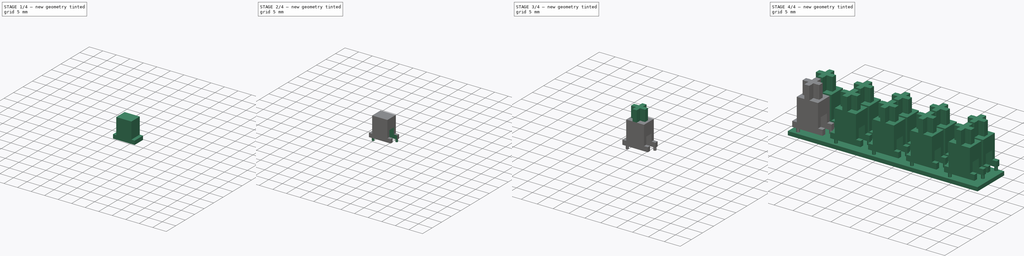
[diagram: build sequence overview — one tinted view per stage of 4, left to right]
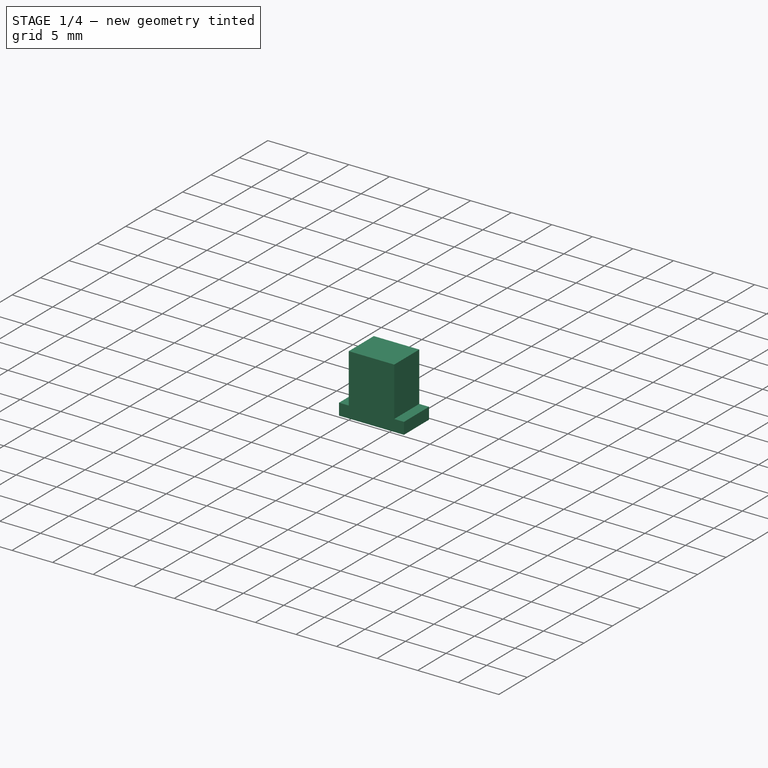
[diagram: stage 1 of 4 — iso view after this stage's code; geometry added in this stage tinted green]
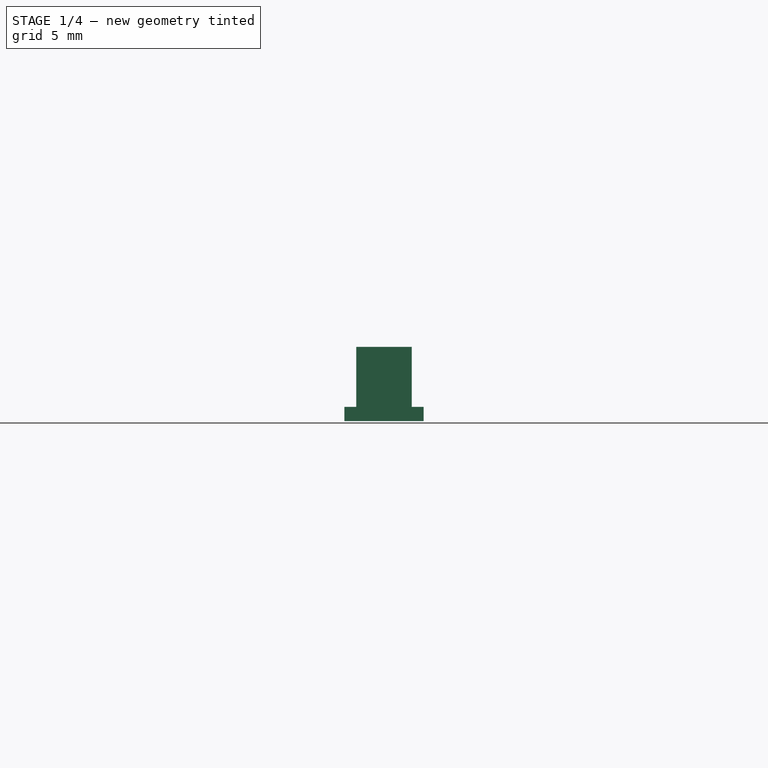
[diagram: stage 1 of 4 — front view after this stage's code; geometry added in this stage tinted green]
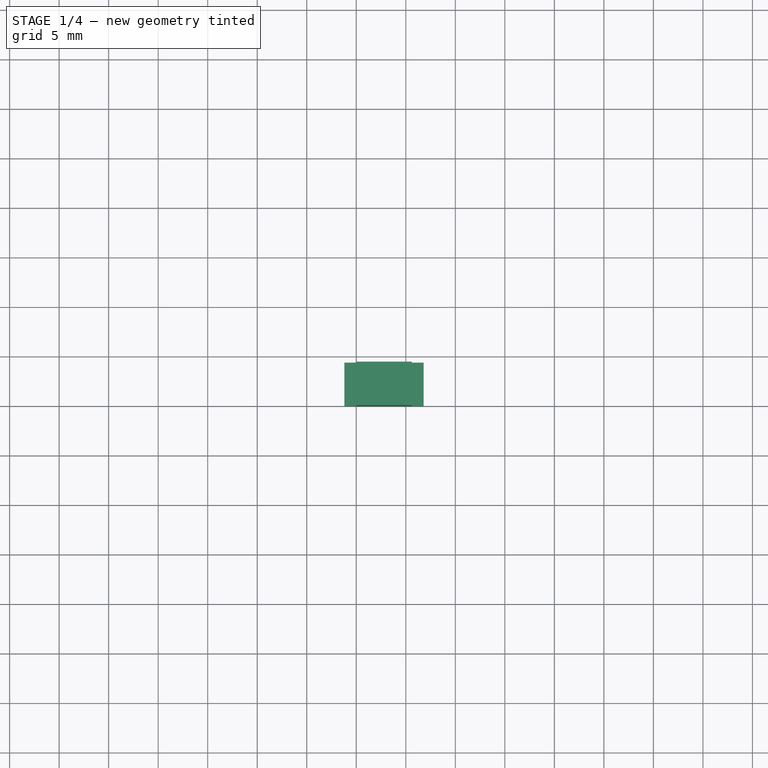
[diagram: stage 1 of 4 — top view after this stage's code; geometry added in this stage tinted green]
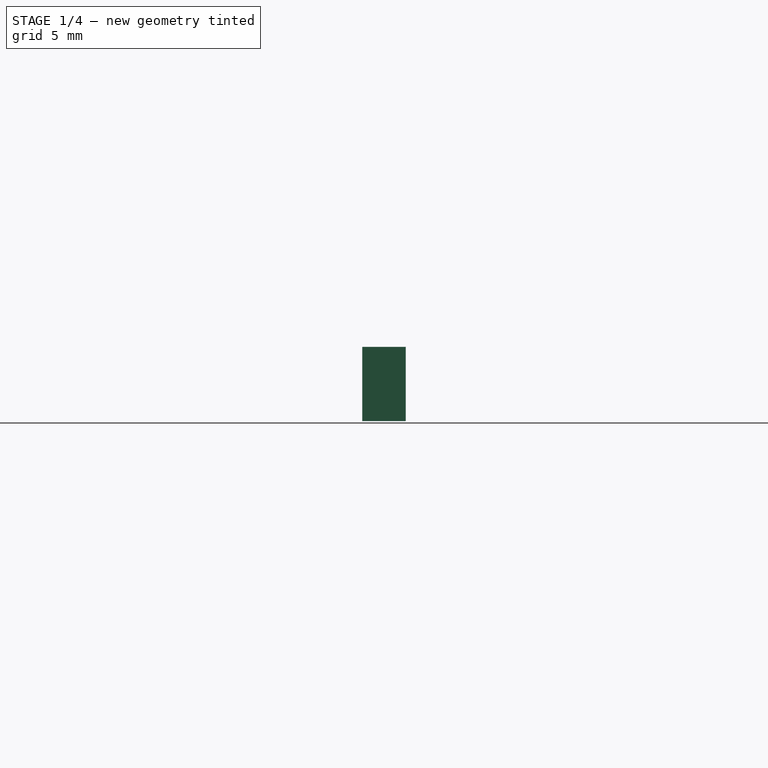
[diagram: stage 1 of 4 — right view after this stage's code; geometry added in this stage tinted green]
FCSTD DOCUMENT  (FreeCAD 0.21R33668 +7 (Git))
Label: DurockInsert
License: All rights reserved
LicenseURL: http://en.wikipedia.org/wiki/All_rights_reserved
objects: PartDesign::Body×5, Sketcher::SketchObject×4, PartDesign::AdditiveBox×3, PartDesign::Plane×2, PartDesign::Pocket×2, PartDesign::Pad×2, Part::FeaturePython×2, PartDesign::FeatureBase×2, PartDesign::Boolean×1, Spreadsheet::Sheet×1, App::Part×1
note: 29 computed .brp shape members not serialized (recipe doc carries the construction recipe); baked Part::Feature solids carry a one-line shape summary decoded from their .brp

FEATURE [PartDesign::AdditiveBox] Box
  AttacherType = Attacher::AttachEngine3D
  Height = 7.5
  Length = 5.6
  Width = 4.4
FEATURE [PartDesign::AdditiveBox] Box001
  AttacherType = Attacher::AttachEngine3D
  AttachmentOffset = pos=(-1.2,0,0) rot=(0,0,1;0rad)
  Height = 1.44
  Length = 8
  MapMode = 5
  Placement = pos=(-1.2,0,0) rot=(0,0,1;0rad)
  Width = 4.4
  expr: .AttachmentOffset.Base.x = -(8 - 5.6) / 2
FEATURE [PartDesign::Boolean] Boolean
  Group = -> [Box,Box001]
  Type = 0
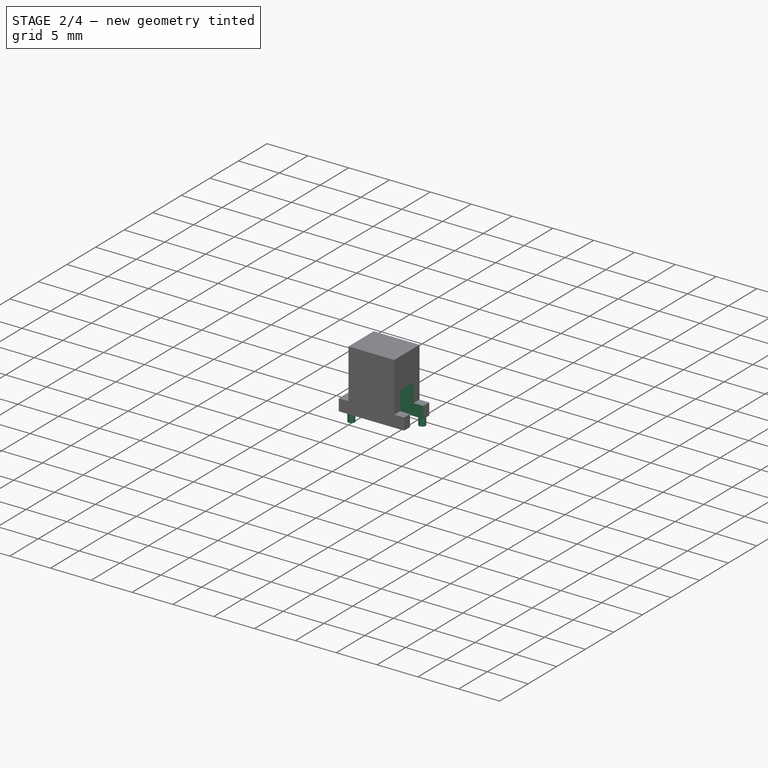
[diagram: stage 2 of 4 — iso view after this stage's code; geometry added in this stage tinted green]
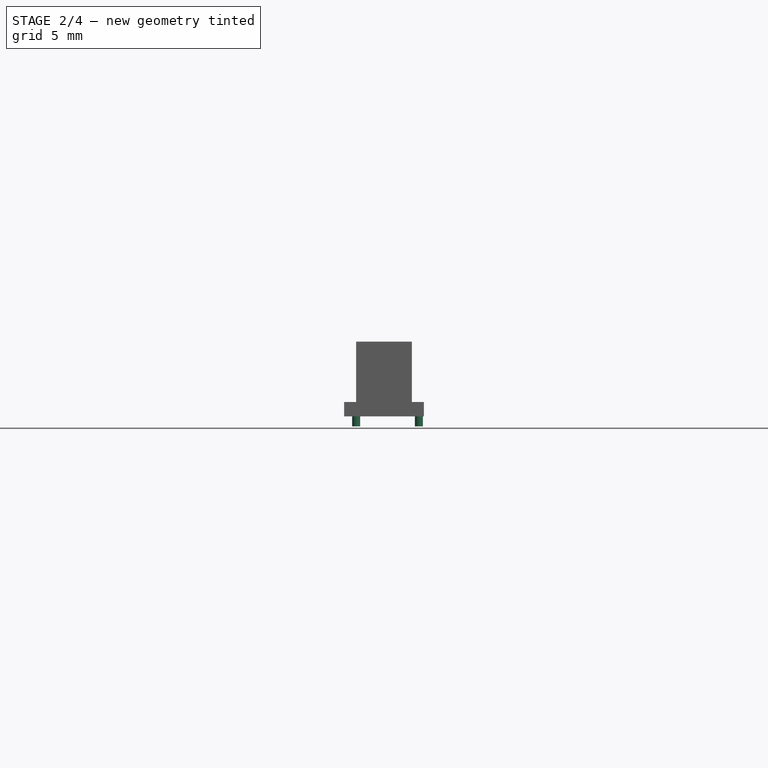
[diagram: stage 2 of 4 — front view after this stage's code; geometry added in this stage tinted green]
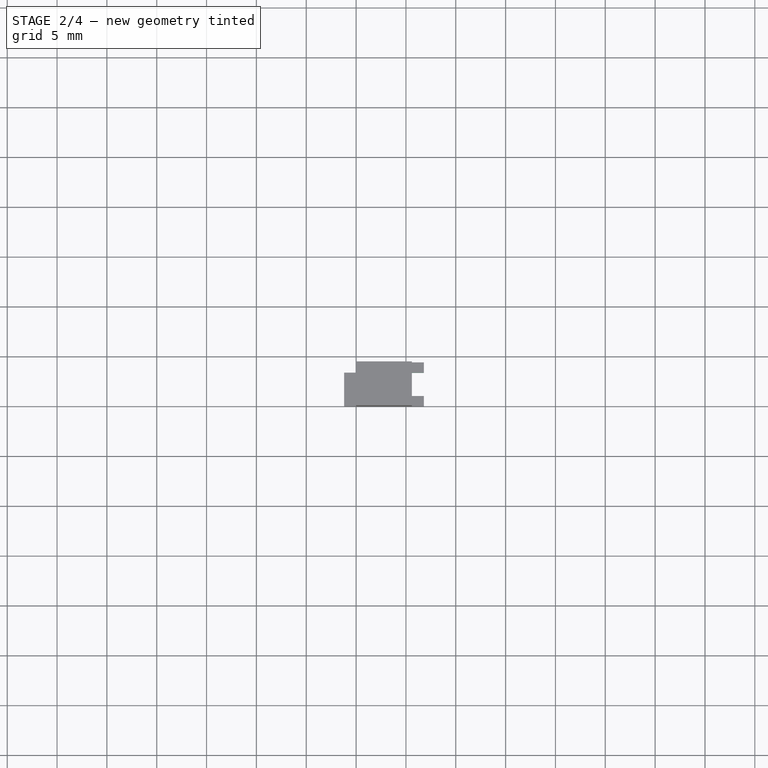
[diagram: stage 2 of 4 — top view after this stage's code; geometry added in this stage tinted green]
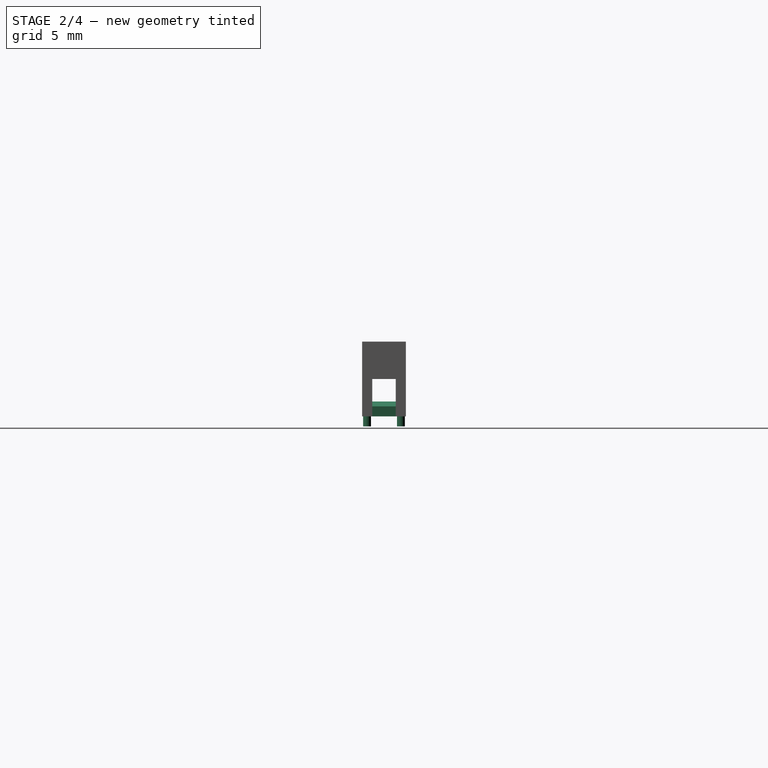
[diagram: stage 2 of 4 — right view after this stage's code; geometry added in this stage tinted green]
FEATURE [PartDesign::Plane] DatumPlane
  AttachmentOffset = pos=(0,0,-1.025) rot=(0,0,1;0rad)
  Length = 60
  MapMode = 5
  Placement = pos=(0,1.025,-2e-16) rot=(1,0,0;1.5708rad)
  ResizeMode = 0
  Support = -> [Boolean]
  Width = 60
  expr: .AttachmentOffset.Base.z = (2.35 - 4.4) / 2
FEATURE [Sketcher::SketchObject] Sketch  label="HoleSketch"
  FullyConstrained = true
  MapMode = 5
  Placement = pos=(0,1.025,-2e-16) rot=(1,0,0;1.5708rad)
  Support = -> [DatumPlane]
  sketch-geometry (8):
    g0: LineSegment StartX=0 StartY=5.5 StartZ=0 EndX=2.85 EndY=3.75 EndZ=0
    g1: LineSegment StartX=2.85 StartY=3.75 StartZ=0 EndX=6.8 EndY=3.75 EndZ=0
    g2: LineSegment StartX=6.8 StartY=3.75 StartZ=0 EndX=6.8 EndY=0 EndZ=0
    g3: LineSegment StartX=6.8 StartY=0 StartZ=0 EndX=3 EndY=0 EndZ=0
    g4: LineSegment StartX=3 StartY=0 StartZ=0 EndX=3 EndY=1 EndZ=0
    g5: LineSegment StartX=3 StartY=1 StartZ=0 EndX=2 EndY=1.5 EndZ=0
    g6: LineSegment StartX=2 StartY=1.5 StartZ=0 EndX=0 EndY=1.5 EndZ=0
    g7: LineSegment StartX=0 StartY=1.5 StartZ=0 EndX=0 EndY=5.5 EndZ=0
  constraints (24):
    c: PointOnObject(g0,g-2)
    c: Coincident(g0,g1)
    c: Horizontal(g1)
    c: Coincident(g1,g2)
    c: PointOnObject(g2,g-1)
    c: Vertical(g2)
    c: Coincident(g2,g3)
    c: PointOnObject(g3,g-1)
    c: Coincident(g3,g4)
    c: Vertical(g4)
    c: Coincident(g4,g5)
    c: Coincident(g5,g6)
    c: PointOnObject(g6,g-2)
    c: Horizontal(g6)
    c: Coincident(g6,g7)
    c: Coincident(g7,g0)
    c: DistanceY(g-1,g0) = 5.5
    c: DistanceY(g-1,g6) = 1.5
    c: DistanceY(g2,g2) = 3.75
    c: DistanceX(g1,g1) = 3.95
    c: DistanceX(g-1,g2) = 6.8
    c: DistanceX(g-1,g3) = 3
    c: DistanceX(g6,g6) = 2
    c: DistanceY(g4,g4) = 1
FEATURE [PartDesign::Pocket] Pocket  label="Hole"
  BaseFeature = -> Boolean
  Direction = (0,1,-2e-16)
  Length = 2.35
  Length2 = 5
  Profile = -> Sketch
  ReferenceAxis = -> Sketch [N_Axis]
  Type = 0
FEATURE [Sketcher::SketchObject] Sketch001  label="NotchSketch"
  ExternalGeometry = -> [Pocket]
  FullyConstrained = true
  MapMode = 5
  Placement = pos=(0,0,0) rot=(1,0,0;3.14159rad)
  Support = -> [Pocket]
  expr: Constraints[10] = (4.4 - 2.35) / 2
  sketch-geometry (4):
    g0: LineSegment StartX=-1.2 StartY=-4.4 StartZ=0 EndX=-2e-16 EndY=-4.4 EndZ=0
    g1: LineSegment StartX=-2e-16 StartY=-4.4 StartZ=0 EndX=-2e-16 EndY=-3.375 EndZ=0
    g2: LineSegment StartX=-2e-16 StartY=-3.375 StartZ=0 EndX=-1.2 EndY=-3.375 EndZ=0
    g3: LineSegment StartX=-1.2 StartY=-3.375 StartZ=0 EndX=-1.2 EndY=-4.4 EndZ=0
  constraints (11):
    c: Coincident(g0,g1)
    c: Coincident(g1,g2)
    c: Coincident(g2,g3)
    c: Coincident(g3,g0)
    c: Horizontal(g0)
    c: Horizontal(g2)
    c: Vertical(g1)
    c: Vertical(g3)
    c: Coincident(g0,g-3)
    c: DistanceX(g2,g2) = 1.2
    c: DistanceY(g1,g1) = 1.025
FEATURE [PartDesign::Pocket] Pocket001  label="Notch"
  BaseFeature = -> Pocket
  Direction = (0,0,1)
  Length = 5
  Length2 = 5
  Profile = -> Sketch001
  ReferenceAxis = -> Sketch001 [N_Axis]
  Refine = true
  Type = 1
FEATURE [PartDesign::Body] Body001  label="StemBody"
  Group = -> [DatumPlane001,Sketch002,Pad]
  Origin = -> Origin002
  Tip = -> Pad
FEATURE [Sketcher::SketchObject] Sketch003  label="SupportSketch"
  ExternalGeometry = -> [Pocket001]
  FullyConstrained = true
  MapMode = 5
  Placement = pos=(0,0,0) rot=(1,0,0;3.14159rad)
  Support = -> [Pocket001]
  sketch-geometry (2):
    g0: Circle CenterX=0 CenterY=-0.5 CenterZ=0 NormalX=0 NormalY=0 NormalZ=1 AngleXU=0 Radius=0.4
    g1: Circle CenterX=6.3 CenterY=-3.9 CenterZ=0 NormalX=0 NormalY=0 NormalZ=1 AngleXU=0 Radius=0.4
  constraints (6):
    c: Diameter(g0) = 0.8
    c: PointOnObject(g0,g-2)
    c: DistanceY(g0,g-1) = 0.5
    c: Diameter(g1) = 0.8
    c: DistanceY(g-3,g1) = 0.5
    c: DistanceX(g1,g-3) = 0.5
FEATURE [PartDesign::Pad] Pad001  label="Support"
  BaseFeature = -> Pocket001
  Direction = (0,0,-1)
  Length = 1
  Length2 = 10
  Profile = -> Sketch003
  ReferenceAxis = -> Sketch003 [N_Axis]
  Type = 0
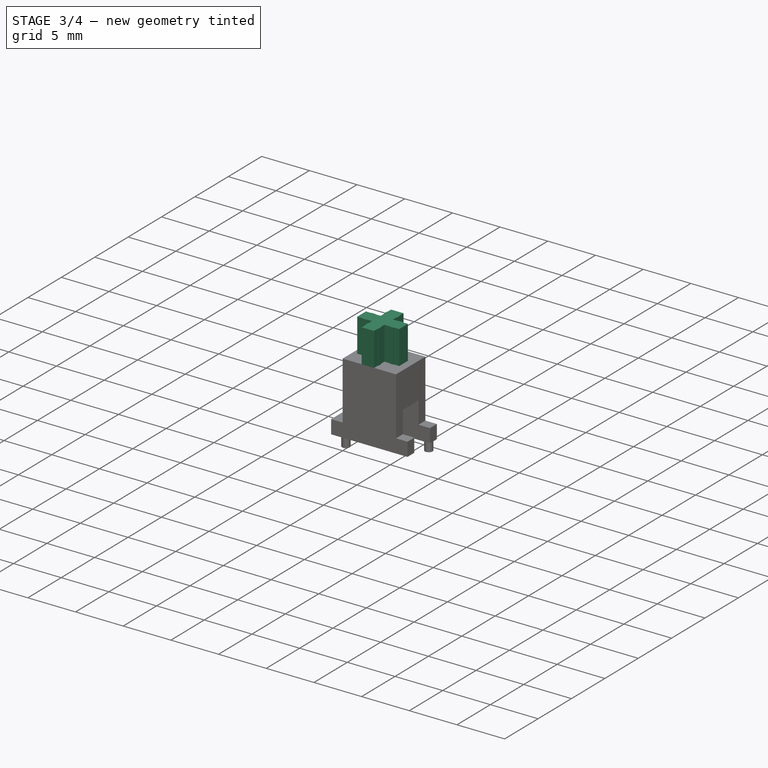
[diagram: stage 3 of 4 — iso view after this stage's code; geometry added in this stage tinted green]
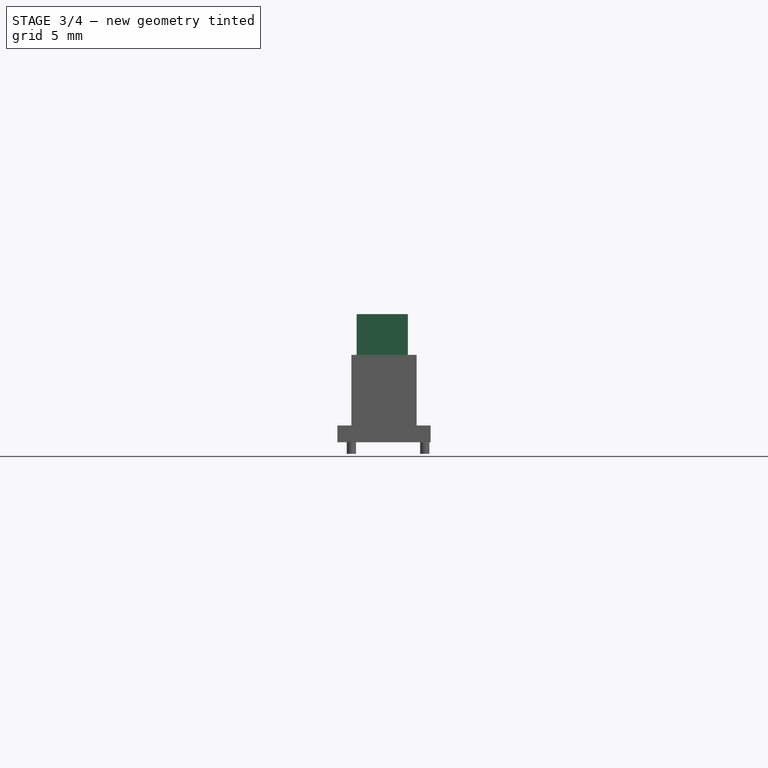
[diagram: stage 3 of 4 — front view after this stage's code; geometry added in this stage tinted green]
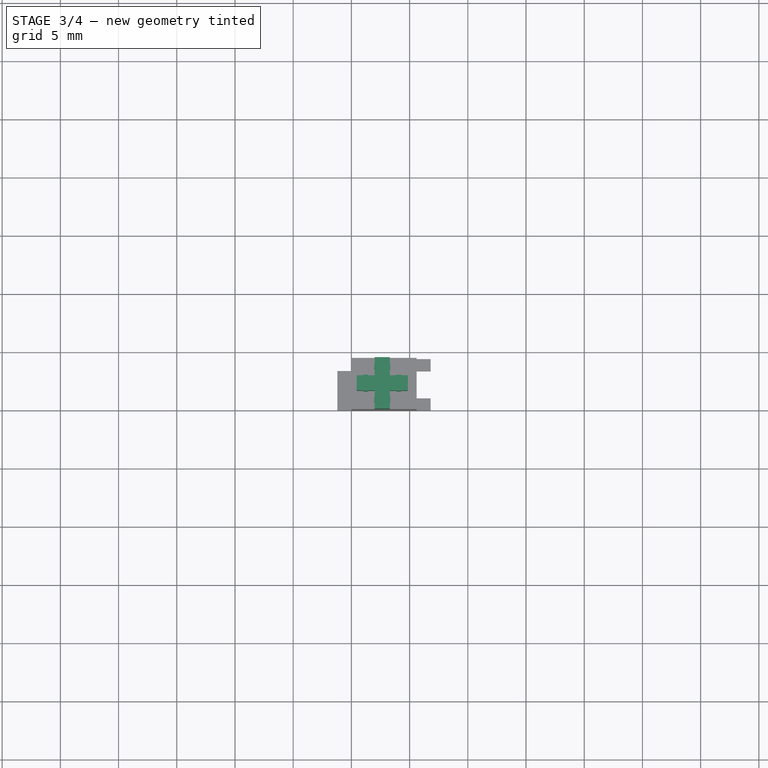
[diagram: stage 3 of 4 — top view after this stage's code; geometry added in this stage tinted green]
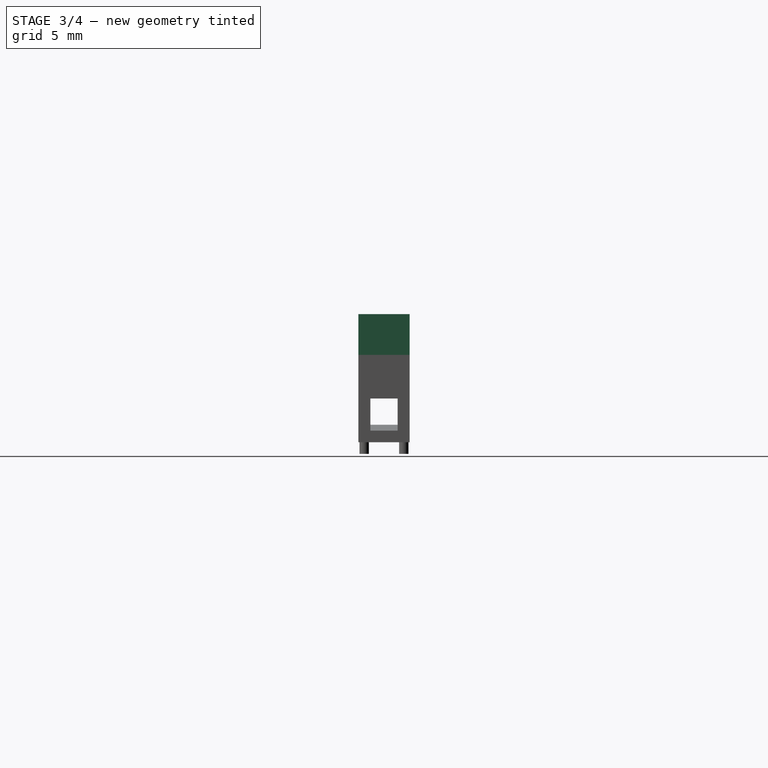
[diagram: stage 3 of 4 — right view after this stage's code; geometry added in this stage tinted green]
FEATURE [PartDesign::Plane] DatumPlane001
  AttachmentOffset = pos=(0,0,7.5) rot=(0,0,1;0rad)
  Length = 60
  MapMode = 2
  Placement = pos=(0,0,7.5) rot=(0,0,1;0rad)
  ResizeMode = 0
  Support = -> [XY_Plane002]
  Width = 60
FEATURE [Sketcher::SketchObject] Sketch002  label="CrossSketch"
  FullyConstrained = true
  MapMode = 5
  Placement = pos=(0,0,7.5) rot=(0,0,1;0rad)
  Support = -> [DatumPlane001]
  expr: Constraints[11] = (5.6 - 1.6) / 2
  sketch-geometry (44):
    g0: LineSegment StartX=2 StartY=4.4 StartZ=0 EndX=3.3 EndY=4.4 EndZ=0
    g1: LineSegment StartX=4.85 StartY=2.85 StartZ=0 EndX=4.85 EndY=1.55 EndZ=0
    g2: LineSegment StartX=3.3 StartY=0 StartZ=0 EndX=2 EndY=0 EndZ=0
    g3: LineSegment StartX=0.45 StartY=1.55 StartZ=0 EndX=0.45 EndY=2.85 EndZ=0
    g4: LineSegment StartX=0.45 StartY=2.85 StartZ=0 EndX=1.025 EndY=2.85 EndZ=0
    g5: LineSegment StartX=2 StartY=3.825 StartZ=0 EndX=2 EndY=4.4 EndZ=0
    g6: LineSegment StartX=3.3 StartY=4.4 StartZ=0 EndX=3.3 EndY=3.825 EndZ=0
    g7: LineSegment StartX=4.275 StartY=2.85 StartZ=0 EndX=4.85 EndY=2.85 EndZ=0
    g8: LineSegment StartX=4.85 StartY=1.55 StartZ=0 EndX=4.275 EndY=1.55 EndZ=0
    g9: LineSegment StartX=0.45 StartY=1.55 StartZ=0 EndX=1.025 EndY=1.55 EndZ=0
    g10: LineSegment StartX=2 StartY=0.575 StartZ=0 EndX=2 EndY=0 EndZ=0
    g11: LineSegment StartX=3.3 StartY=0.575 StartZ=0 EndX=3.3 EndY=0 EndZ=0
    g12: LineSegment StartX=1.025 StartY=2.85 StartZ=0 EndX=1.025 EndY=2.9 EndZ=0
    g13: LineSegment StartX=1.025 StartY=2.9 StartZ=0 EndX=1.425 EndY=2.9 EndZ=0
    g14: LineSegment StartX=1.425 StartY=2.9 StartZ=0 EndX=1.425 EndY=2.85 EndZ=0
    g15: LineSegment StartX=1.425 StartY=2.85 StartZ=0 EndX=2 EndY=2.85 EndZ=0
    g16: LineSegment StartX=2 StartY=2.85 StartZ=0 EndX=2 EndY=3.425 EndZ=0
    g17: LineSegment StartX=2 StartY=3.425 StartZ=0 EndX=1.95 EndY=3.425 EndZ=0
    g18: LineSegment StartX=1.95 StartY=3.425 StartZ=0 EndX=1.95 EndY=3.825 EndZ=0
    g19: LineSegment StartX=1.95 StartY=3.825 StartZ=0 EndX=2 EndY=3.825 EndZ=0
    g20: LineSegment StartX=1.025 StartY=1.55 StartZ=0 EndX=1.025 EndY=1.5 EndZ=0
    g21: LineSegment StartX=1.025 StartY=1.5 StartZ=0 EndX=1.425 EndY=1.5 EndZ=0
    g22: LineSegment StartX=1.425 StartY=1.5 StartZ=0 EndX=1.425 EndY=1.55 EndZ=0
    g23: LineSegment StartX=1.425 StartY=1.55 StartZ=0 EndX=2 EndY=1.55 EndZ=0
    g24: LineSegment StartX=2 StartY=1.55 StartZ=0 EndX=2 EndY=0.975 EndZ=0
    g25: LineSegment StartX=2 StartY=0.975 StartZ=0 EndX=1.95 EndY=0.975 EndZ=0
    g26: LineSegment StartX=1.95 StartY=0.975 StartZ=0 EndX=1.95 EndY=0.575 EndZ=0
    g27: LineSegment StartX=1.95 StartY=0.575 StartZ=0 EndX=2 EndY=0.575 EndZ=0
    g28: LineSegment StartX=3.3 StartY=0.575 StartZ=0 EndX=3.35 EndY=0.575 EndZ=0
    g29: LineSegment StartX=3.35 StartY=0.575 StartZ=0 EndX=3.35 EndY=0.975 EndZ=0
    g30: LineSegment StartX=3.35 StartY=0.975 StartZ=0 EndX=3.3 EndY=0.975 EndZ=0
    g31: LineSegment StartX=3.3 StartY=0.975 StartZ=0 EndX=3.3 EndY=1.55 EndZ=0
    g32: LineSegment StartX=3.3 StartY=1.55 StartZ=0 EndX=3.875 EndY=1.55 EndZ=0
    g33: LineSegment StartX=3.875 StartY=1.55 StartZ=0 EndX=3.875 EndY=1.5 EndZ=0
    g34: LineSegment StartX=3.875 StartY=1.5 StartZ=0 EndX=4.275 EndY=1.5 EndZ=0
    g35: LineSegment StartX=4.275 StartY=1.5 StartZ=0 EndX=4.275 EndY=1.55 EndZ=0
    g36: LineSegment StartX=3.3 StartY=3.825 StartZ=0 EndX=3.35 EndY=3.825 EndZ=0
    g37: LineSegment StartX=3.35 StartY=3.825 StartZ=0 EndX=3.35 EndY=3.425 EndZ=0
    g38: LineSegment StartX=3.35 StartY=3.425 StartZ=0 EndX=3.3 EndY=3.425 EndZ=0
    g39: LineSegment StartX=3.3 StartY=3.425 StartZ=0 EndX=3.3 EndY=2.85 EndZ=0
    g40: LineSegment StartX=3.3 StartY=2.85 StartZ=0 EndX=3.875 EndY=2.85 EndZ=0
    g41: LineSegment StartX=3.875 StartY=2.85 StartZ=0 EndX=3.875 EndY=2.9 EndZ=0
    g42: LineSegment StartX=3.875 StartY=2.9 StartZ=0 EndX=4.275 EndY=2.9 EndZ=0
    g43: LineSegment StartX=4.275 StartY=2.9 StartZ=0 EndX=4.275 EndY=2.85 EndZ=0
  constraints (132):
    c: Horizontal(g0)
    c: Vertical(g1)
    c: Horizontal(g2)
    c: Vertical(g3)
    c: Coincident(g3,g4)
    c: Equal(g0,g2)
    c: Equal(g3,g1)
    c: Equal(g1,g0)
    c: DistanceY(g1,g1) = 1.3
    c: Horizontal(g-1,g2)
    c: DistanceY(g2,g0) = 4.4
    c: DistanceX(g-1,g2) = 2
    c: Horizontal(g4)
    c: Coincident(g5,g0)
    c: Vertical(g5)
    c: Coincident(g0,g6)
    c: Vertical(g6)
    c: Coincident(g7,g1)
    c: Horizontal(g7)
    c: Coincident(g1,g8)
    c: Horizontal(g8)
    c: Coincident(g3,g9)
    c: Horizontal(g9)
    c: Coincident(g10,g2)
    c: Vertical(g10)
    c: Coincident(g11,g2)
    c: Vertical(g11)
    c: Equal(g4,g5)
    c: Equal(g4,g7)
    c: Equal(g4,g8)
    c: Equal(g4,g10)
    c: Equal(g4,g11)
    c: Horizontal(g3,g1)
    c: Vertical(g0,g2)
    c: DistanceX(g3,g1) = 4.4
    c: Coincident(g4,g12)
    c: Vertical(g12)
    c: Coincident(g12,g13)
    c: Horizontal(g13)
    c: Coincident(g13,g14)
    c: Vertical(g14)
    c: Coincident(g14,g15)
    c: Horizontal(g15)
    c: Coincident(g15,g16)
    c: Vertical(g16)
    c: Coincident(g16,g17)
    c: Horizontal(g17)
    c: Coincident(g17,g18)
    c: Vertical(g18)
    c: Coincident(g18,g19)
    c: Horizontal(g19)
    c: Coincident(g5,g19)
    c: Equal(g13,g18)
    c: Equal(g12,g17)
    c: Equal(g4,g15)
    c: Equal(g15,g16)
    c: Equal(g12,g14)
    c: Equal(g17,g19)
    c: DistanceY(g12,g12) = 0.05
    c: DistanceX(g13,g13) = 0.4
    c: Horizontal(g5,g6)
    c: Vertical(g4,g9)
    c: Coincident(g9,g20)
    c: Vertical(g20)
    c: Coincident(g20,g21)
    c: Horizontal(g21)
    c: Coincident(g21,g22)
    c: Vertical(g22)
    c: Coincident(g22,g23)
    c: Horizontal(g23)
    c: Coincident(g23,g24)
    c: Vertical(g24)
    c: Coincident(g24,g25)
    c: Horizontal(g25)
    c: Coincident(g25,g26)
    c: Vertical(g26)
    c: Coincident(g26,g27)
    c: Horizontal(g27)
    c: Coincident(g27,g10)
    c: Vertical(g17,g25)
    c: Vertical(g14,g22)
    c: Equal(g13,g26)
    c: Horizontal(g9,g22)
    c: Equal(g12,g20)
    c: Vertical(g15,g23)
    c: Coincident(g11,g28)
    c: Horizontal(g28)
    c: Coincident(g28,g29)
    c: Vertical(g29)
    c: Coincident(g29,g30)
    c: Horizontal(g30)
    c: Coincident(g30,g31)
    c: Vertical(g31)
    c: Coincident(g31,g32)
    c: Horizontal(g32)
    c: Coincident(g32,g33)
    c: Vertical(g33)
    c: Coincident(g33,g34)
    c: Horizontal(g34)
    c: Coincident(g34,g35)
    c: Coincident(g35,g8)
    c: Vertical(g35)
    c: Horizontal(g23,g31)
    c: Horizontal(g21,g33)
    c: Equal(g13,g34)
    c: Equal(g32,g8)
    c: Vertical(g30,g11)
    c: Horizontal(g24,g30)
    c: Equal(g25,g30)
    c: Coincident(g6,g36)
    c: Horizontal(g36)
    c: Coincident(g36,g37)
    c: Vertical(g37)
    c: Coincident(g37,g38)
    c: Horizontal(g38)
    c: Coincident(g38,g39)
    c: Vertical(g39)
    c: Coincident(g39,g40)
    c: Horizontal(g40)
    c: Coincident(g40,g41)
    c: Vertical(g41)
    c: Coincident(g41,g42)
    c: Horizontal(g42)
    c: Coincident(g42,g43)
    c: Coincident(g43,g7)
    c: Vertical(g43)
    c: Vertical(g31,g39)
    c: Horizontal(g15,g39)
    c: Horizontal(g13,g41)
    c: Vertical(g41,g33)
    c: Horizontal(g17,g37)
    c: Vertical(g37,g29)
FEATURE [PartDesign::Pad] Pad
  Direction = (0,0,1)
  Length = 3.5
  Length2 = 10
  Placement = pos=(0,0,7.5) rot=(0,0,1;0rad)
  Profile = -> Sketch002
  ReferenceAxis = -> Sketch002 [N_Axis]
  Type = 0
FEATURE [PartDesign::Body] Body  label="MainBody"
  Group = -> [Boolean,DatumPlane,Sketch,Pocket,Sketch001,Pocket001,Sketch003,Pad001]
  Origin = -> Origin001
  Tip = -> Pad001
FEATURE [Part::FeaturePython] Connect  # WARN: FeaturePython — macro-defined, semantics opaque (R4)
  Objects = -> [Body,Body001]
  Refine = true
  Tolerance = 0
FEATURE [PartDesign::FeatureBase] BaseFeature
  BaseFeature = -> Connect
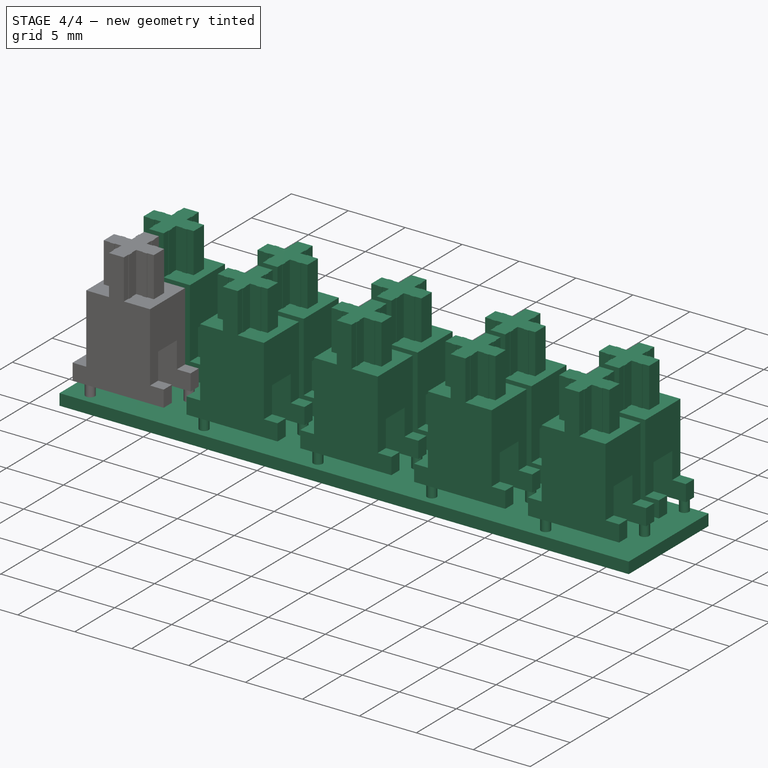
[diagram: stage 4 of 4 — iso view after this stage's code; geometry added in this stage tinted green]
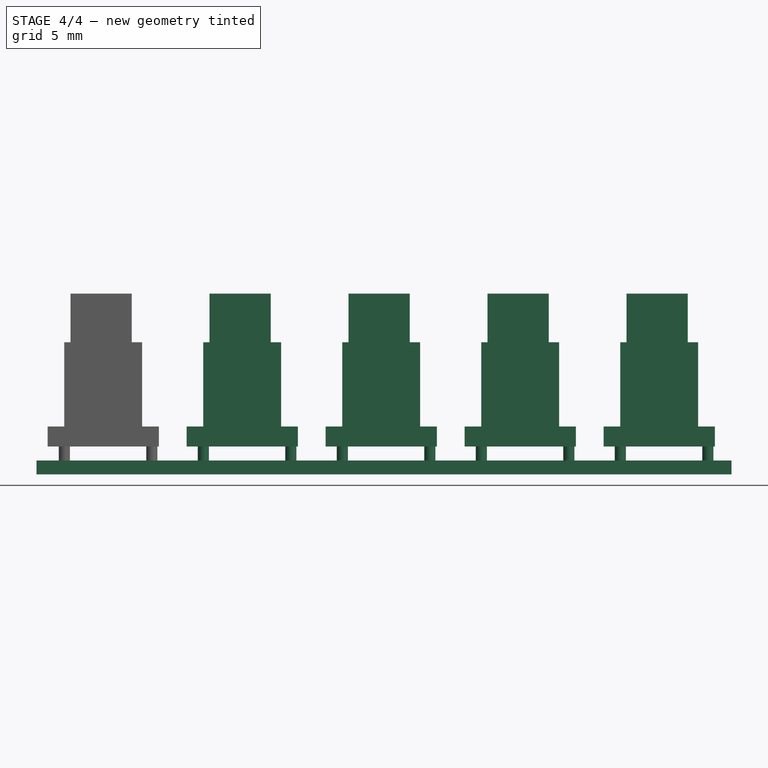
[diagram: stage 4 of 4 — front view after this stage's code; geometry added in this stage tinted green]
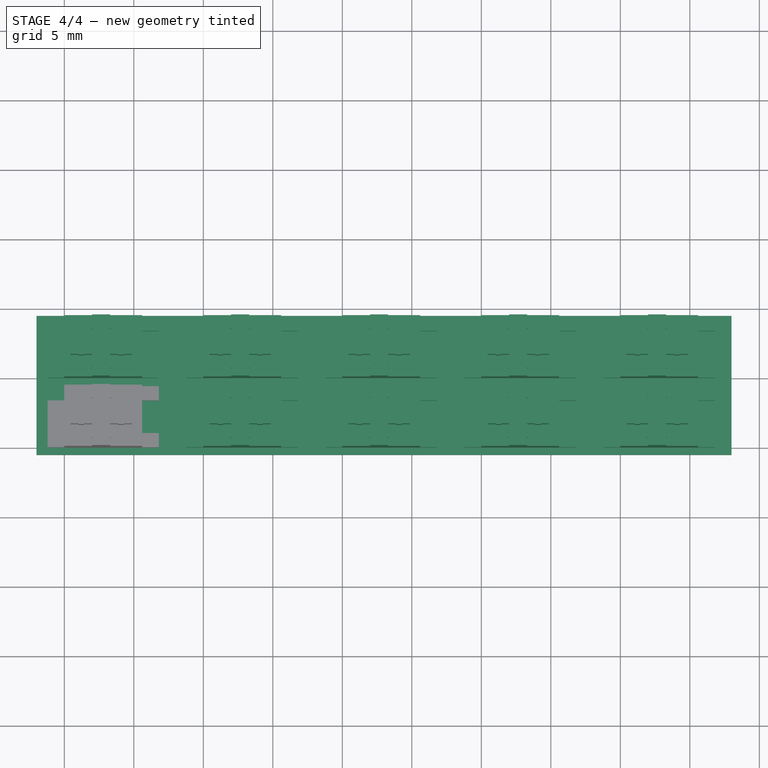
[diagram: stage 4 of 4 — top view after this stage's code; geometry added in this stage tinted green]
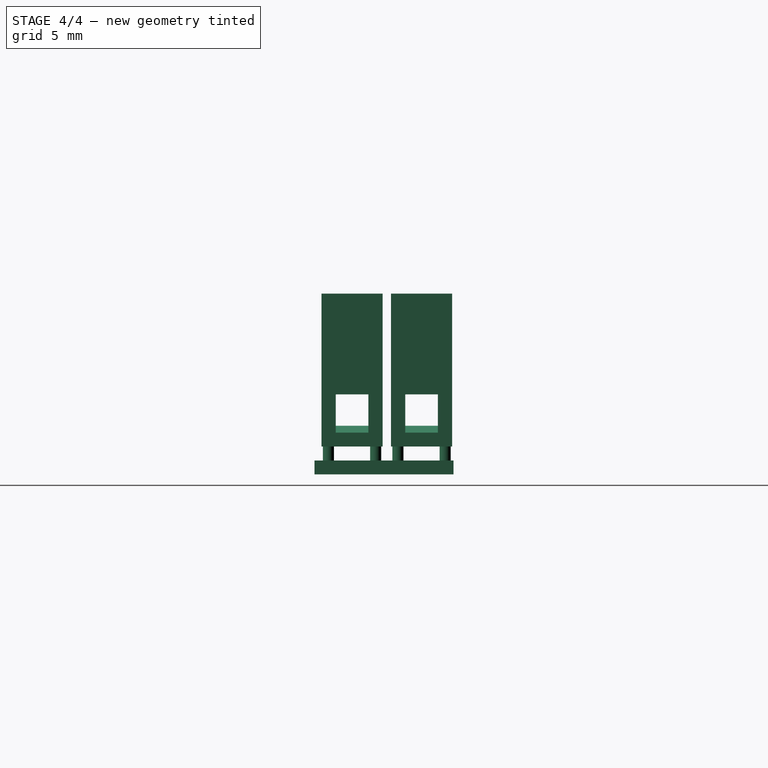
[diagram: stage 4 of 4 — right view after this stage's code; geometry added in this stage tinted green]
FEATURE [PartDesign::Body] Body002  label="DurockInsertBody"
  BaseFeature = -> Connect
  Group = -> [BaseFeature]
  Origin = -> Origin003
  Tip = -> BaseFeature
FEATURE [Part::FeaturePython] Array  # Draft array (typed FeaturePython)
  AlwaysSyncPlacement = false
  Angle = 360
  ArrayType = 0
  Axis = (0,0,1)
  Base = -> Body002
  Center = (0,0,0)
  Count = 10
  ExpandArray = false
  Fuse = false
  IntervalAxis = (0,0,0)
  IntervalX = (10,0,0)
  IntervalY = (0,5,0)
  IntervalZ = (0,0,100)
  NumberCircles = 3
  NumberPolar = 5
  NumberX = 5
  NumberY = 2
  NumberZ = 1
  PlacementList = 10 placements: [(0,0,0),(0,5,0),(10,0,0),(10,5,0),(20,0,0),(20,5,0),(30,0,0),(30,5,0),(40,0,0),(40,5,0)]
  RadialDistance = 50
  ScaleList = (10) [(1,1,1),(1,1,1),(1,1,1),(1,1,1),(1,1,1),(1,1,1),(1,1,1),(1,1,1),(1,1,1),(1,1,1)]
  Symmetry = 1
  TangentialDistance = 25
  expr: NumberX = Spreadsheet.Cols
  expr: NumberY = Spreadsheet.Rows
FEATURE [Spreadsheet::Sheet] Spreadsheet
  cells = A1(Cols)=5; A2(Rows)=2
FEATURE [PartDesign::FeatureBase] BaseFeature001
  BaseFeature = -> Array
FEATURE [PartDesign::AdditiveBox] Box002  label="Plate"
  AttacherType = Attacher::AttachEngine3D
  AttachmentOffset = pos=(-2,-0.5,-2) rot=(0,0,1;0rad)
  BaseFeature = -> BaseFeature001
  Height = 1
  Length = 50
  MapMode = 5
  Placement = pos=(-2,-0.5,-2) rot=(0,0,1;0rad)
  Support = -> [XY_Plane004]
  Width = 10
  expr: Length = 10 * Spreadsheet.Cols
  expr: Width = 5 * Spreadsheet.Rows
FEATURE [PartDesign::Body] Body003  label="InsertArray"
  BaseFeature = -> Array
  Group = -> [BaseFeature001,Box002]
  Origin = -> Origin004
  Tip = -> Box002
FEATURE [PartDesign::Body] BoxBody
  Origin = -> Origin005
FEATURE [App::Part] Part  label="DurockInsert"
  Group = -> [Array,Body,Body001,Body002,Connect,Body003,BoxBody]
  Origin = -> Origin
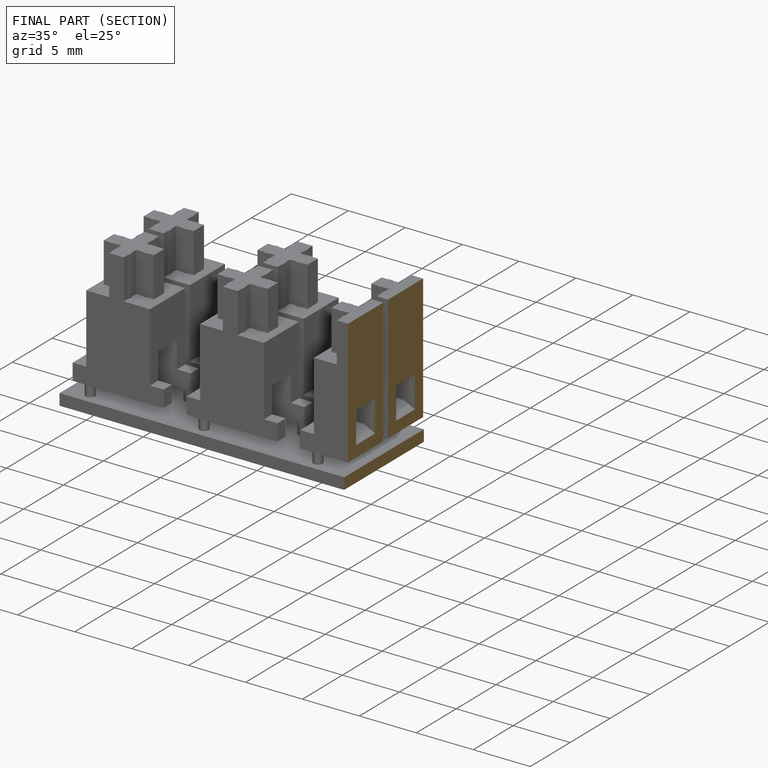
[diagram: finished part — half-section view (interior)]
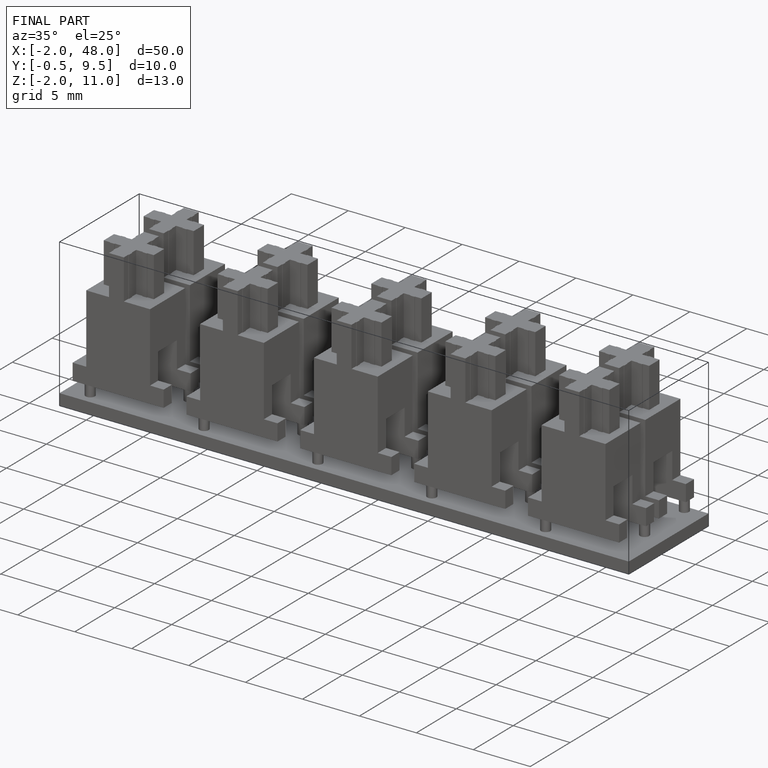
[diagram: finished part — iso view with bounding-box wireframe]
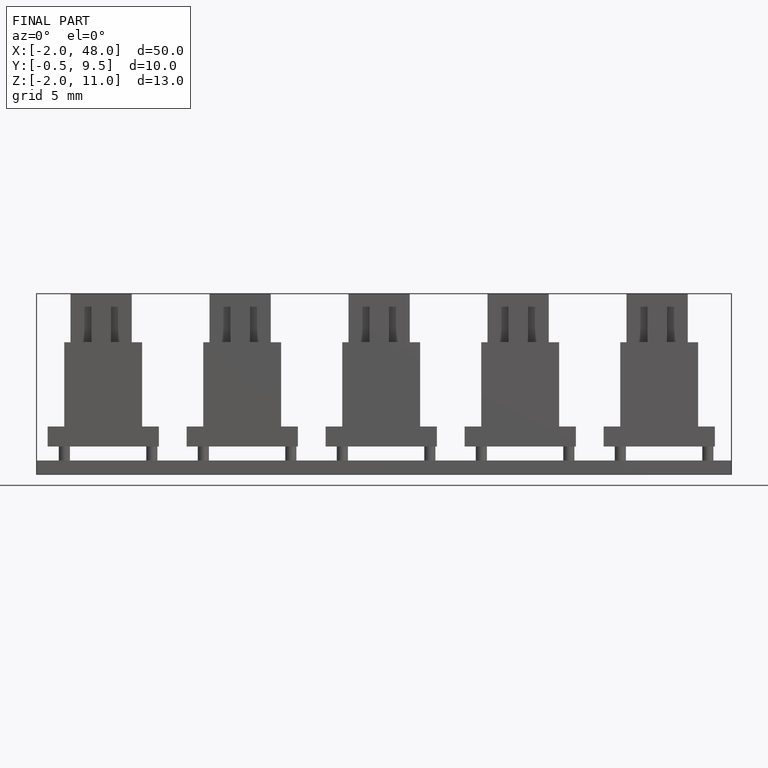
[diagram: finished part — front view with bounding-box wireframe]
